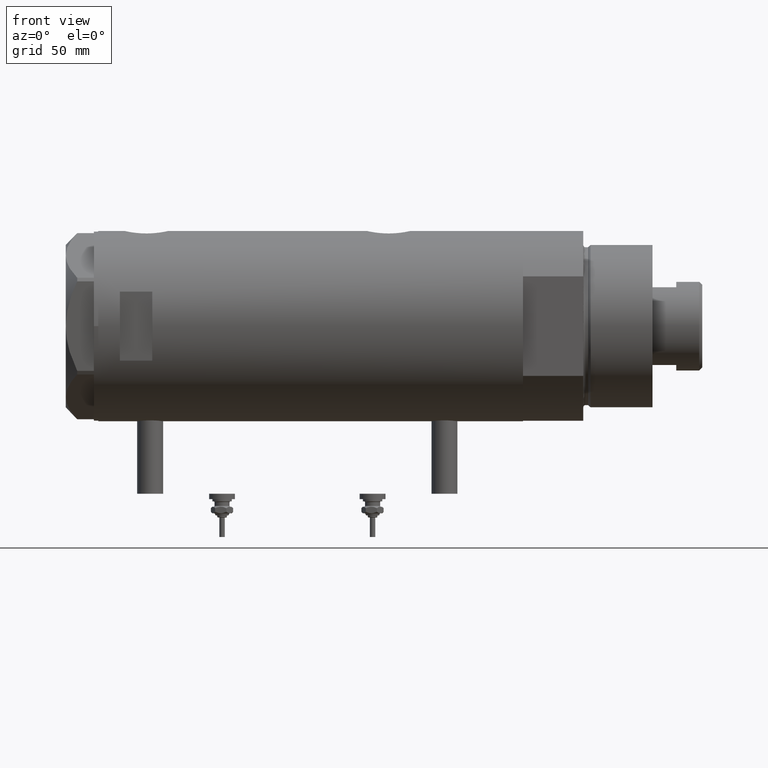
[diagram: clean part render]
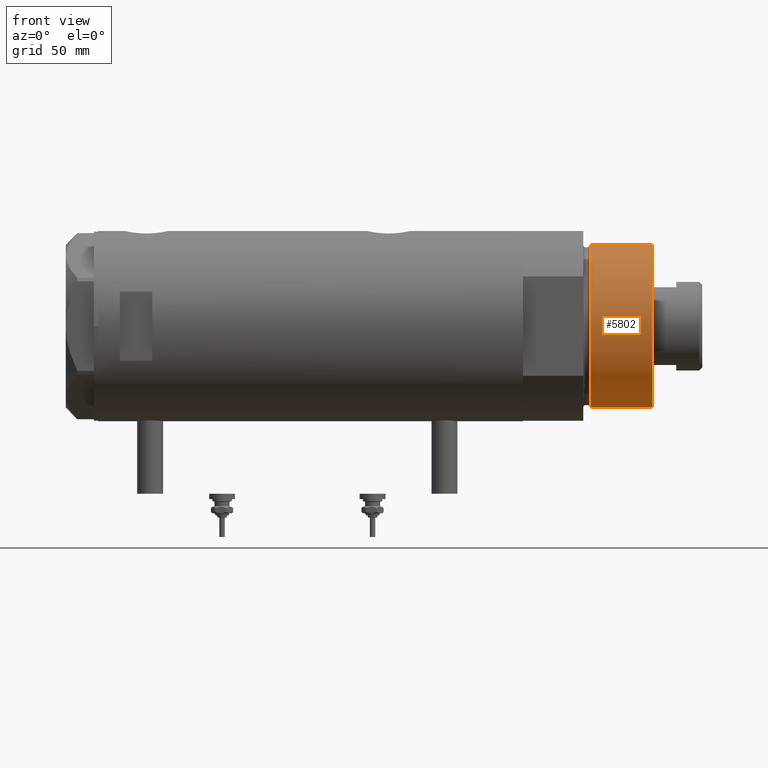
[diagram: same view with one face highlighted and labeled with its STEP entity id]
A machine part, front view. The second image highlights one B-rep face of the part: STEP entity #5802.
In plain terms, the highlighted cylindrical surface (partial cylindrical patch) has radius 37.5 mm, axis along (-1, -0, 0).
Its self-contained STEP definition (entity closure, byte-faithful):
#10 = CARTESIAN_POINT ( 'NONE',  ( 0.000000000000000000, 0.000000000000000000, 31.27384048104054415 ) ) ;
#87 = VERTEX_POINT ( 'NONE', #2695 ) ;
#150 = ORIENTED_EDGE ( 'NONE', *, *, #3458, .T. ) ;
#265 = DIRECTION ( 'NONE',  ( 1.000000000000000000, 0.000000000000000000, 0.000000000000000000 ) ) ;
#287 = VERTEX_POINT ( 'NONE', #4482 ) ;
#293 = VECTOR ( 'NONE', #295, 1000.000000000000000 ) ;
#295 = DIRECTION ( 'NONE',  ( -0.000000000000000000, -0.000000000000000000, -1.000000000000000000 ) ) ;
#435 = VERTEX_POINT ( 'NONE', #3326 ) ;
#728 = VERTEX_POINT ( 'NONE', #1774 ) ;
#991 = AXIS2_PLACEMENT_3D ( 'NONE', #10, #3710, #5585 ) ;
#1580 = CARTESIAN_POINT ( 'NONE',  ( 0.000000000000000000, 0.000000000000000000, 59.89999999999999147 ) ) ;
#1604 = CYLINDRICAL_SURFACE ( 'NONE', #2125, 37.50000000000000711 ) ;
#1774 = CARTESIAN_POINT ( 'NONE',  ( -37.50000000000000711, 0.000000000000000000, 59.89999999999999147 ) ) ;
#1888 = EDGE_CURVE ( 'NONE', #728, #287, #4728, .T. ) ;
#2125 = AXIS2_PLACEMENT_3D ( 'NONE', #1580, #3379, #3435 ) ;
#2384 = EDGE_LOOP ( 'NONE', ( #3521, #5512, #150, #3820 ) ) ;
#2565 = CARTESIAN_POINT ( 'NONE',  ( 0.000000000000000000, 0.000000000000000000, 59.89999999999999147 ) ) ;
#2695 = CARTESIAN_POINT ( 'NONE',  ( -37.50000000000000711, 0.000000000000000000, 31.27384048104054415 ) ) ;
#2815 = CIRCLE ( 'NONE', #991, 37.50000000000000711 ) ;
#3326 = CARTESIAN_POINT ( 'NONE',  ( 37.50000000000000711, 4.592425496802575156E-15, 31.27384048104054415 ) ) ;
#3379 = DIRECTION ( 'NONE',  ( -0.000000000000000000, -0.000000000000000000, -1.000000000000000000 ) ) ;
#3412 = LINE ( 'NONE', #4841, #5549 ) ;
#3435 = DIRECTION ( 'NONE',  ( -1.000000000000000000, 0.000000000000000000, 0.000000000000000000 ) ) ;
#3458 = EDGE_CURVE ( 'NONE', #728, #87, #4475, .T. ) ;
#3521 = ORIENTED_EDGE ( 'NONE', *, *, #4193, .F. ) ;
#3710 = DIRECTION ( 'NONE',  ( -0.000000000000000000, -0.000000000000000000, 1.000000000000000000 ) ) ;
#3810 = FACE_OUTER_BOUND ( 'NONE', #2384, .T. ) ;
#3820 = ORIENTED_EDGE ( 'NONE', *, *, #5633, .T. ) ;
#4014 = DIRECTION ( 'NONE',  ( 0.000000000000000000, 0.000000000000000000, 1.000000000000000000 ) ) ;
#4015 = CARTESIAN_POINT ( 'NONE',  ( -37.50000000000000711, 0.000000000000000000, 59.89999999999999147 ) ) ;
#4193 = EDGE_CURVE ( 'NONE', #287, #435, #3412, .T. ) ;
#4403 = DIRECTION ( 'NONE',  ( -0.000000000000000000, -0.000000000000000000, -1.000000000000000000 ) ) ;
#4475 = LINE ( 'NONE', #4015, #293 ) ;
#4482 = CARTESIAN_POINT ( 'NONE',  ( 37.50000000000000711, 4.592425496802575156E-15, 59.89999999999999147 ) ) ;
#4728 = CIRCLE ( 'NONE', #5231, 37.50000000000000711 ) ;
#4841 = CARTESIAN_POINT ( 'NONE',  ( 37.50000000000000711, 4.592425496802575156E-15, 59.89999999999999147 ) ) ;
#5231 = AXIS2_PLACEMENT_3D ( 'NONE', #2565, #4014, #265 ) ;
#5512 = ORIENTED_EDGE ( 'NONE', *, *, #1888, .F. ) ;
#5549 = VECTOR ( 'NONE', #4403, 1000.000000000000000 ) ;
#5585 = DIRECTION ( 'NONE',  ( 1.000000000000000000, 0.000000000000000000, 0.000000000000000000 ) ) ;
#5633 = EDGE_CURVE ( 'NONE', #87, #435, #2815, .T. ) ;
#5802 = ADVANCED_FACE ( 'NONE', ( #3810 ), #1604, .T. ) ;